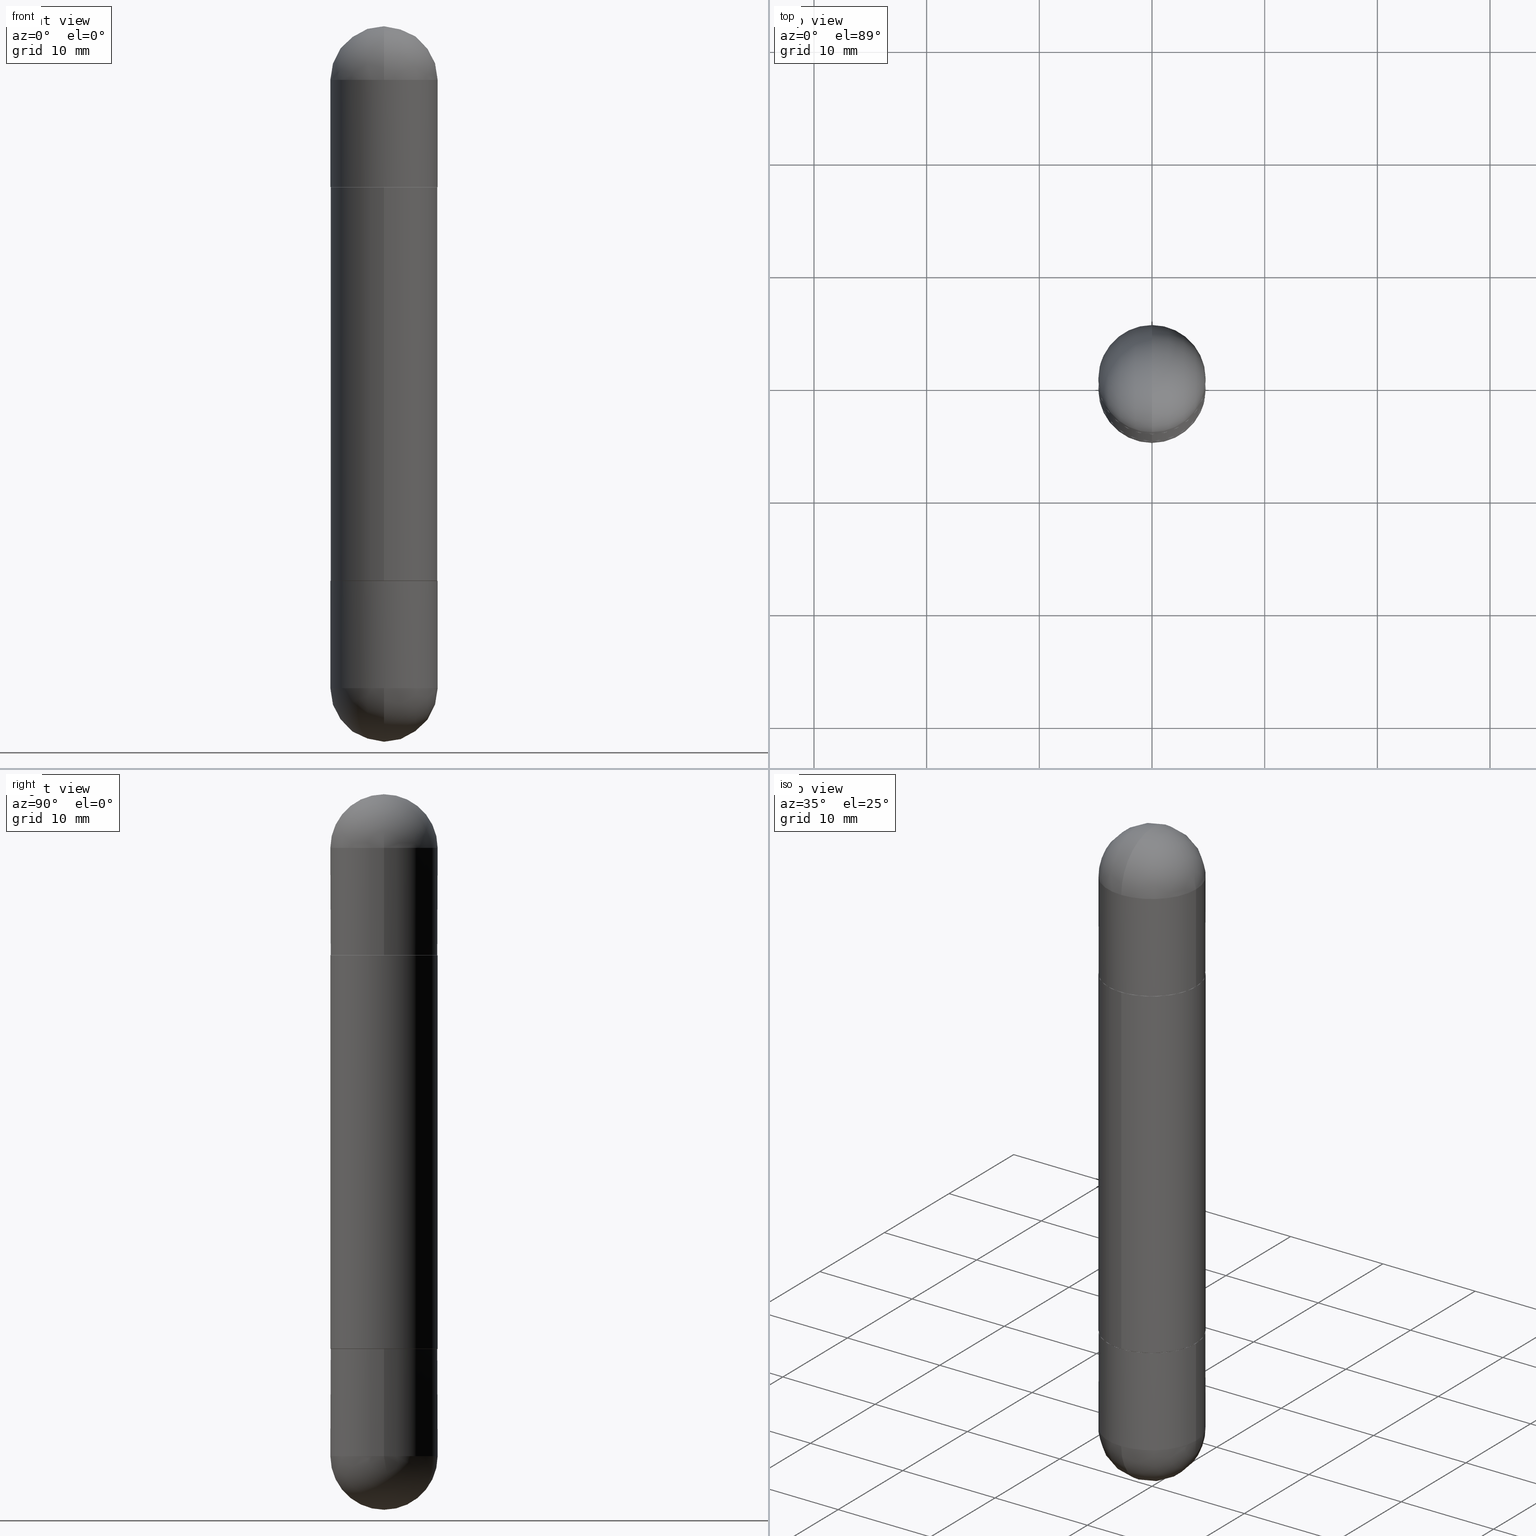
[diagram: canonical four-view strip — front | top / right | iso, engineering-drawing reading convention]
A machine part, canonical four-view strip (front | top / right | iso — engineering-drawing reading convention). The complete STEP part file that produces these views, byte-faithful:
ISO-10303-21;
HEADER;
FILE_DESCRIPTION (( 'STEP AP203' ),
    '1' );
FILE_NAME ('31354.STEP',
    '2024-03-01T12:41:32',
    ( '' ),
    ( '' ),
    'SwSTEP 2.0',
    'SolidWorks 2023',
    '' );
FILE_SCHEMA (( 'CONFIG_CONTROL_DESIGN' ));
ENDSEC;

DATA;
#1 = DIRECTION ( 'NONE',  ( 2.445468806185136597E-29, -3.491481338843145583E-15, 1.000000000000000000 ) ) ;
#2 = DIRECTION ( 'NONE',  ( -2.445919005488626364E-29, 3.490836627816795453E-15, 1.000000000000000000 ) ) ;
#3 = CARTESIAN_POINT ( 'NONE',  ( -0.1875000000000000278, -6.133927340794232602E-15, -0.5620000000000007212 ) ) ;
#4 = PLANE ( 'NONE',  #698 ) ;
#5 = DIRECTION ( 'NONE',  ( 1.000000000000000000, -6.982962677686266711E-15, -4.883557194083113462E-29 ) ) ;
#6 = AXIS2_PLACEMENT_3D ( 'NONE', #30, #791, #780 ) ;
#7 = DIRECTION ( 'NONE',  ( 4.851104656541377638E-15, 0.7071067811866103003, -0.7071067811864847341 ) ) ;
#8 = CARTESIAN_POINT ( 'NONE',  ( 4.737745113631468267E-29, -6.761750548081131125E-15, -0.5630000000000008331 ) ) ;
#9 = DIRECTION ( 'NONE',  ( 2.445468806185136597E-29, -3.491481338843145583E-15, 1.000000000000000000 ) ) ;
#10 = CARTESIAN_POINT ( 'NONE',  ( 0.000000000000000000, 0.000000000000000000, -2.500000000000000444 ) ) ;
#11 = FACE_OUTER_BOUND ( 'NONE', #180, .T. ) ;
#12 = CARTESIAN_POINT ( 'NONE',  ( 0.1875000000000000555, -8.729576217442571356E-15, -2.312500000000000000 ) ) ;
#13 = LENGTH_MEASURE_WITH_UNIT ( LENGTH_MEASURE( 0.02539999999999999897 ), #469 );
#14 = DIRECTION ( 'NONE',  ( -1.000000000000000000, 0.000000000000000000, 0.000000000000000000 ) ) ;
#15 = CARTESIAN_POINT ( 'NONE',  ( 4.740191032636957666E-29, -6.765241384708948197E-15, -0.5620000000000007212 ) ) ;
#16 = EDGE_CURVE ( 'NONE', #294, #729, #804, .T. ) ;
#17 = AXIS2_PLACEMENT_3D ( 'NONE', #478, #114, #751 ) ;
#18 = DATE_AND_TIME ( #585, #481 ) ;
#19 = EDGE_CURVE ( 'NONE', #729, #564, #23, .T. ) ;
#20 = ORIENTED_EDGE ( 'NONE', *, *, #202, .T. ) ;
#21 = EDGE_LOOP ( 'NONE', ( #152, #735, #812, #608 ) ) ;
#22 = AXIS2_PLACEMENT_3D ( 'NONE', #433, #352, #689 ) ;
#23 = CIRCLE ( 'NONE', #22, 0.1875000000000000555 ) ;
#24 = DIRECTION ( 'NONE',  ( -2.445919005488626364E-29, 3.490836627816795453E-15, 1.000000000000000000 ) ) ;
#25 = CARTESIAN_POINT ( 'NONE',  ( 5.655146614303128380E-29, -8.074050596074775072E-15, -0.1875000000000006661 ) ) ;
#26 = ORIENTED_EDGE ( 'NONE', *, *, #815, .F. ) ;
#27 = CARTESIAN_POINT ( 'NONE',  ( 0.000000000000000000, 0.000000000000000000, -2.500000000000000444 ) ) ;
#28 = EDGE_LOOP ( 'NONE', ( #490, #45, #26, #287 ) ) ;
#29 = ADVANCED_FACE ( 'NONE', ( #123 ), #621, .T. ) ;
#30 = CARTESIAN_POINT ( 'NONE',  ( 0.000000000000000000, 0.000000000000000000, 0.000000000000000000 ) ) ;
#31 = AXIS2_PLACEMENT_3D ( 'NONE', #703, #503, #761 ) ;
#32 = DIRECTION ( 'NONE',  ( -6.982962677686265922E-15, -1.000000000000000000, -3.661994629576761260E-15 ) ) ;
#33 = VERTEX_POINT ( 'NONE', #817 ) ;
#34 = CIRCLE ( 'NONE', #499, 0.1875000000000000555 ) ;
#35 = DIRECTION ( 'NONE',  ( -6.982962677686265922E-15, -1.000000000000000000, 2.929595703661408850E-15 ) ) ;
#36 = ORIENTED_EDGE ( 'NONE', *, *, #334, .F. ) ;
#37 = DIRECTION ( 'NONE',  ( 0.000000000000000000, 0.000000000000000000, 1.000000000000000000 ) ) ;
#38 = ORIENTED_EDGE ( 'NONE', *, *, #613, .F. ) ;
#39 = DIRECTION ( 'NONE',  ( 1.000000000000000000, -6.982962677686270655E-15, 0.000000000000000000 ) ) ;
#40 = ADVANCED_FACE ( 'NONE', ( #697 ), #630, .T. ) ;
#41 = AXIS2_PLACEMENT_3D ( 'NONE', #517, #196, #493 ) ;
#42 = ADVANCED_FACE ( 'NONE', ( #11 ), #60, .T. ) ;
#43 = ORIENTED_EDGE ( 'NONE', *, *, #169, .T. ) ;
#44 = CIRCLE ( 'NONE', #738, 0.1875000000000003331 ) ;
#45 = ORIENTED_EDGE ( 'NONE', *, *, #228, .T. ) ;
#46 = FACE_OUTER_BOUND ( 'NONE', #790, .T. ) ;
#47 = AXIS2_PLACEMENT_3D ( 'NONE', #25, #406, #341 ) ;
#48 = ORIENTED_EDGE ( 'NONE', *, *, #144, .F. ) ;
#49 = CARTESIAN_POINT ( 'NONE',  ( -1.309305502066128860E-15, -0.1875000000000069389, -0.5630000000000014992 ) ) ;
#50 = LINE ( 'NONE', #302, #721 ) ;
#51 = ORIENTED_EDGE ( 'NONE', *, *, #229, .F. ) ;
#52 = VERTEX_POINT ( 'NONE', #633 ) ;
#53 = EDGE_CURVE ( 'NONE', #409, #529, #486, .T. ) ;
#54 = EDGE_CURVE ( 'NONE', #798, #704, #373, .T. ) ;
#55 = CARTESIAN_POINT ( 'NONE',  ( 5.324026836389243254E-29, -8.548232964214825368E-15, -0.1875000000000006661 ) ) ;
#56 = CARTESIAN_POINT ( 'NONE',  ( 4.740191032636957666E-29, -6.765241384708948197E-15, -1.937999999999999945 ) ) ;
#57 = VECTOR ( 'NONE', #769, 39.37007874015748143 ) ;
#58 = DIRECTION ( 'NONE',  ( -2.445919005488626364E-29, 3.490836627816795453E-15, -1.000000000000000000 ) ) ;
#59 = CARTESIAN_POINT ( 'NONE',  ( -1.302322539388441071E-15, -0.1865000000000067437, -0.5620000000000013873 ) ) ;
#60 = CONICAL_SURFACE ( 'NONE', #387, 0.1864999999999999714, 0.7853981633975336552 ) ;
#61 = CARTESIAN_POINT ( 'NONE',  ( 5.790569421510013204E-29, -9.191404651505909607E-15, -3.414809992080329023E-16 ) ) ;
#62 = DIRECTION ( 'NONE',  ( -6.982962677686266711E-15, -1.000000000000000000, -2.913971193241879189E-15 ) ) ;
#63 = FACE_OUTER_BOUND ( 'NONE', #238, .T. ) ;
#64 = CARTESIAN_POINT ( 'NONE',  ( 1.309305502066231017E-15, 0.1874999999999918954, -2.312500000000000444 ) ) ;
#65 = DIRECTION ( 'NONE',  ( 1.000000000000000000, -6.982962677686266711E-15, 0.000000000000000000 ) ) ;
#66 = VECTOR ( 'NONE', #7, 39.37007874015748143 ) ;
#67 = CC_DESIGN_APPROVAL ( #249, ( #111 ) ) ;
#68 = CARTESIAN_POINT ( 'NONE',  ( 4.740191032636957666E-29, -6.765241384708948197E-15, -0.5620000000000007212 ) ) ;
#69 = CARTESIAN_POINT ( 'NONE',  ( 4.739318546386794397E-29, -6.766490834678016045E-15, -0.5620000000000007212 ) ) ;
#70 = CARTESIAN_POINT ( 'NONE',  ( 0.000000000000000000, 0.000000000000000000, -2.500000000000000444 ) ) ;
#71 = CLOSED_SHELL ( 'NONE', ( #755, #693, #407, #132, #628, #495 ) ) ;
#72 = AXIS2_PLACEMENT_3D ( 'NONE', #740, #240, #235 ) ;
#73 = PERSON_AND_ORGANIZATION_ROLE ( 'creator' ) ;
#74 = ADVANCED_FACE ( 'NONE', ( #256 ), #382, .F. ) ;
#75 = SPHERICAL_SURFACE ( 'NONE', #659, 0.1875000000000003331 ) ;
#76 = DIRECTION ( 'NONE',  ( -2.445468806185136597E-29, 3.491481338843145583E-15, 1.000000000000000000 ) ) ;
#77 = CC_DESIGN_PERSON_AND_ORGANIZATION_ASSIGNMENT ( #264, #224, ( #410 ) ) ;
#78 = EDGE_CURVE ( 'NONE', #618, #211, #34, .T. ) ;
#79 = APPROVAL_ROLE ( '' ) ;
#80 = PLANE ( 'NONE',  #116 ) ;
#81 = ORIENTED_EDGE ( 'NONE', *, *, #719, .F. ) ;
#82 = MANIFOLD_SOLID_BREP ( 'Mirror4[3]', #375 ) ;
#83 = CIRCLE ( 'NONE', #737, 0.1875000000000000555 ) ;
#84 = LOCAL_TIME ( 7, 41, 32.00000000000000000, #544 ) ;
#85 = SECURITY_CLASSIFICATION_LEVEL ( 'unclassified' ) ;
#86 = CARTESIAN_POINT ( 'NONE',  ( 5.324026836389243254E-29, -8.548232964214825368E-15, -0.1875000000000006661 ) ) ;
#87 = ORIENTED_EDGE ( 'NONE', *, *, #251, .T. ) ;
#88 = AXIS2_PLACEMENT_3D ( 'NONE', #710, #516, #701 ) ;
#89 = CIRCLE ( 'NONE', #754, 0.1875000000000002220 ) ;
#90 = DIRECTION ( 'NONE',  ( 2.445919005488626364E-29, -3.490836627816795453E-15, 1.000000000000000000 ) ) ;
#91 = EDGE_LOOP ( 'NONE', ( #809, #598, #99, #539, #339 ) ) ;
#92 = ORIENTED_EDGE ( 'NONE', *, *, #143, .T. ) ;
#93 = CARTESIAN_POINT ( 'NONE',  ( 1.325162202192633778E-15, 0.1864999999999932268, -1.938000000000000389 ) ) ;
#94 = ORIENTED_EDGE ( 'NONE', *, *, #119, .F. ) ;
#95 = MANIFOLD_SOLID_BREP ( 'Body-Move/Copy2[1]', #403 ) ;
#96 = CIRCLE ( 'NONE', #763, 0.1875000000000000555 ) ;
#97 = CARTESIAN_POINT ( 'NONE',  ( 4.740191032636957666E-29, -6.765241384708948197E-15, -0.5620000000000007212 ) ) ;
#98 = EDGE_LOOP ( 'NONE', ( #48, #588 ) ) ;
#99 = ORIENTED_EDGE ( 'NONE', *, *, #570, .T. ) ;
#100 = CIRCLE ( 'NONE', #527, 0.1875000000000000555 ) ;
#101 = DIRECTION ( 'NONE',  ( -1.000000000000000000, 0.000000000000000000, 0.000000000000000000 ) ) ;
#102 = EDGE_CURVE ( 'NONE', #398, #226, #146, .T. ) ;
#103 = EDGE_LOOP ( 'NONE', ( #612, #660, #472, #399 ) ) ;
#104 = PRODUCT_RELATED_PRODUCT_CATEGORY ( 'detail', '', ( #410 ) ) ;
#105 = EDGE_CURVE ( 'NONE', #233, #528, #818, .T. ) ;
#106 = CARTESIAN_POINT ( 'NONE',  ( 0.000000000000000000, 0.000000000000000000, -2.500000000000000444 ) ) ;
#107 = ORIENTED_EDGE ( 'NONE', *, *, #627, .F. ) ;
#108 = ORIENTED_EDGE ( 'NONE', *, *, #143, .F. ) ;
#109 = LINE ( 'NONE', #803, #541 ) ;
#110 = AXIS2_PLACEMENT_3D ( 'NONE', #10, #58, #765 ) ;
#111 = SECURITY_CLASSIFICATION ( '', '', #85 ) ;
#112 = ORIENTED_EDGE ( 'NONE', *, *, #793, .F. ) ;
#113 = CARTESIAN_POINT ( 'NONE',  ( 3.057398756860784006E-29, -4.363545784770995696E-15, -1.250000000000000222 ) ) ;
#114 = DIRECTION ( 'NONE',  ( -2.445919005488626364E-29, 3.490836627816795453E-15, 1.000000000000000000 ) ) ;
#115 = EDGE_LOOP ( 'NONE', ( #467, #214, #92, #392 ) ) ;
#116 = AXIS2_PLACEMENT_3D ( 'NONE', #722, #330, #526 ) ;
#117 = DIRECTION ( 'NONE',  ( 1.000000000000000000, -6.982962677686270655E-15, 0.000000000000000000 ) ) ;
#118 = ADVANCED_FACE ( 'NONE', ( #386 ), #253, .T. ) ;
#119 = EDGE_CURVE ( 'NONE', #564, #278, #100, .T. ) ;
#120 = DIRECTION ( 'NONE',  ( -2.445919005488626364E-29, 3.490836627816795453E-15, -1.000000000000000000 ) ) ;
#121 = PLANE ( 'NONE',  #331 ) ;
#122 = VERTEX_POINT ( 'NONE', #379 ) ;
#123 = FACE_OUTER_BOUND ( 'NONE', #483, .T. ) ;
#124 = CARTESIAN_POINT ( 'NONE',  ( 1.309305502066222340E-15, 0.1874999999999932554, -1.938000000000000389 ) ) ;
#125 = ORIENTED_EDGE ( 'NONE', *, *, #19, .T. ) ;
#126 = DIRECTION ( 'NONE',  ( -2.445919005488626364E-29, 3.490836627816795453E-15, -1.000000000000000000 ) ) ;
#127 = CIRCLE ( 'NONE', #220, 0.1875000000000000555 ) ;
#128 = DIRECTION ( 'NONE',  ( 1.000000000000000000, -6.982962677686266711E-15, 0.000000000000000000 ) ) ;
#129 = DIRECTION ( 'NONE',  ( -1.000000000000000000, 6.982962677686265922E-15, 4.876176775795935793E-29 ) ) ;
#130 = CIRCLE ( 'NONE', #554, 0.1875000000000002220 ) ;
#131 = CIRCLE ( 'NONE', #592, 0.1864999999999999714 ) ;
#132 = ADVANCED_FACE ( 'NONE', ( #504 ), #4, .F. ) ;
#133 = FACE_OUTER_BOUND ( 'NONE', #243, .T. ) ;
#134 = DIRECTION ( 'NONE',  ( -2.445919005488625803E-29, 3.490836627816795453E-15, -1.000000000000000000 ) ) ;
#135 = DIRECTION ( 'NONE',  ( -6.982962677686265922E-15, -1.000000000000000000, -3.642463991552347014E-15 ) ) ;
#136 = CARTESIAN_POINT ( 'NONE',  ( 1.309305502066231017E-15, 0.1874999999999918954, -0.1875000000000000278 ) ) ;
#137 = DIRECTION ( 'NONE',  ( 1.000000000000000000, -6.982962677686265922E-15, 0.000000000000000000 ) ) ;
#138 = CYLINDRICAL_SURFACE ( 'NONE', #41, 0.1875000000000000555 ) ;
#139 = ADVANCED_FACE ( 'NONE', ( #758 ), #452, .T. ) ;
#140 = APPROVAL_STATUS ( 'not_yet_approved' ) ;
#141 = FACE_OUTER_BOUND ( 'NONE', #115, .T. ) ;
#142 = DIRECTION ( 'NONE',  ( -6.982962677686265922E-15, -1.000000000000000000, 2.929595703661408850E-15 ) ) ;
#143 = EDGE_CURVE ( 'NONE', #784, #745, #130, .T. ) ;
#144 = EDGE_CURVE ( 'NONE', #226, #398, #296, .T. ) ;
#145 = CYLINDRICAL_SURFACE ( 'NONE', #400, 0.1875000000000000555 ) ;
#146 = CIRCLE ( 'NONE', #601, 0.1864999999999999714 ) ;
#147 = DIRECTION ( 'NONE',  ( 1.000000000000000000, -6.982962677686266711E-15, -4.883557194083113462E-29 ) ) ;
#148 = ADVANCED_BREP_SHAPE_REPRESENTATION ( '31354', ( #95, #360, #82, #635, #646, #6 ), #623 ) ;
#149 = ORIENTED_EDGE ( 'NONE', *, *, #53, .F. ) ;
#150 = APPROVAL_DATE_TIME ( #18, #814 ) ;
#151 = ORIENTED_EDGE ( 'NONE', *, *, #639, .F. ) ;
#152 = ORIENTED_EDGE ( 'NONE', *, *, #259, .F. ) ;
#153 = AXIS2_PLACEMENT_3D ( 'NONE', #685, #771, #267 ) ;
#154 = CARTESIAN_POINT ( 'NONE',  ( 5.324026836389243254E-29, -8.548232964214825368E-15, -0.1875000000000006661 ) ) ;
#155 = DIRECTION ( 'NONE',  ( -1.000000000000000000, 7.105427357601001070E-15, -4.926315508542082329E-29 ) ) ;
#156 = ORIENTED_EDGE ( 'NONE', *, *, #345, .T. ) ;
#157 = EDGE_LOOP ( 'NONE', ( #557, #343 ) ) ;
#158 = CIRCLE ( 'NONE', #555, 0.1875000000000000278 ) ;
#159 = CARTESIAN_POINT ( 'NONE',  ( -1.302322539388441071E-15, -0.1865000000000067437, -0.5620000000000013873 ) ) ;
#160 = LINE ( 'NONE', #533, #797 ) ;
#161 = VERTEX_POINT ( 'NONE', #307 ) ;
#162 = DIRECTION ( 'NONE',  ( 1.000000000000000000, -6.982962677686266711E-15, 0.000000000000000000 ) ) ;
#163 = ORIENTED_EDGE ( 'NONE', *, *, #582, .F. ) ;
#164 = VECTOR ( 'NONE', #444, 39.37007874015748143 ) ;
#165 = AXIS2_PLACEMENT_3D ( 'NONE', #450, #326, #204 ) ;
#166 = DIRECTION ( 'NONE',  ( 2.445919005488626364E-29, -3.490836627816795453E-15, 1.000000000000000000 ) ) ;
#167 = ORIENTED_EDGE ( 'NONE', *, *, #366, .F. ) ;
#168 = CC_DESIGN_DATE_AND_TIME_ASSIGNMENT ( #477, #347, ( #111 ) ) ;
#169 = EDGE_CURVE ( 'NONE', #528, #233, #158, .T. ) ;
#170 = PERSON_AND_ORGANIZATION_ROLE ( 'classification_officer' ) ;
#171 = CARTESIAN_POINT ( 'NONE',  ( 5.324026836389243254E-29, -8.548232964214825368E-15, -0.1875000000000006661 ) ) ;
#172 = VERTEX_POINT ( 'NONE', #208 ) ;
#173 = PERSON_AND_ORGANIZATION ( #439, #574 ) ;
#174 = CARTESIAN_POINT ( 'NONE',  ( 0.1875000000000000555, -8.729576217442571356E-15, -0.1875000000000006661 ) ) ;
#175 = ORIENTED_EDGE ( 'NONE', *, *, #259, .T. ) ;
#176 = CARTESIAN_POINT ( 'NONE',  ( 5.324026836389243254E-29, -8.548232964214825368E-15, -0.1875000000000006661 ) ) ;
#177 = ADVANCED_FACE ( 'NONE', ( #787 ), #522, .T. ) ;
#178 = CARTESIAN_POINT ( 'NONE',  ( 1.328714915871435071E-15, 0.1864999999999932268, -1.938000000000000389 ) ) ;
#179 = AXIS2_PLACEMENT_3D ( 'NONE', #624, #317, #374 ) ;
#180 = EDGE_LOOP ( 'NONE', ( #654, #342, #540, #688 ) ) ;
#181 = CARTESIAN_POINT ( 'NONE',  ( -1.286343374582108525E-15, -0.1875000000000084932, -0.1875000000000013045 ) ) ;
#182 = CARTESIAN_POINT ( 'NONE',  ( 0.000000000000000000, 0.000000000000000000, -2.500000000000000444 ) ) ;
#183 = CIRCLE ( 'NONE', #699, 0.1875000000000003331 ) ;
#184 = ORIENTED_EDGE ( 'NONE', *, *, #251, .F. ) ;
#185 = DIRECTION ( 'NONE',  ( -2.445919005488626364E-29, 3.490836627816795453E-15, -1.000000000000000000 ) ) ;
#186 = EDGE_LOOP ( 'NONE', ( #299, #593 ) ) ;
#187 = DIRECTION ( 'NONE',  ( 2.445468806185136597E-29, -3.491481338843145583E-15, 1.000000000000000000 ) ) ;
#188 = PLANE ( 'NONE',  #440 ) ;
#189 = DIRECTION ( 'NONE',  ( -4.937700262164969294E-15, -0.7071067811866054154, -0.7071067811864896191 ) ) ;
#190 = CONICAL_SURFACE ( 'NONE', #216, 0.1864999999999999714, 0.7853981633975336552 ) ;
#191 = LOCAL_TIME ( 7, 41, 32.00000000000000000, #776 ) ;
#192 = ADVANCED_FACE ( 'NONE', ( #713 ), #80, .F. ) ;
#193 = DIRECTION ( 'NONE',  ( 2.438088387897960049E-29, -3.491481338843145188E-15, -1.000000000000000000 ) ) ;
#194 = CARTESIAN_POINT ( 'NONE',  ( 0.000000000000000000, 0.000000000000000000, -2.500000000000000444 ) ) ;
#195 = AXIS2_PLACEMENT_3D ( 'NONE', #86, #147, #465 ) ;
#196 = DIRECTION ( 'NONE',  ( -2.445468806185136597E-29, 3.491481338843145583E-15, -1.000000000000000000 ) ) ;
#197 = DIRECTION ( 'NONE',  ( -6.982962677686265922E-15, -1.000000000000000000, -3.490836627816795453E-15 ) ) ;
#198 = DIRECTION ( 'NONE',  ( -2.445919005488626364E-29, 3.490836627816795453E-15, -1.000000000000000000 ) ) ;
#199 = CARTESIAN_POINT ( 'NONE',  ( 1.286343374582193722E-15, 0.1874999999999934497, -1.937000000000000499 ) ) ;
#200 = CARTESIAN_POINT ( 'NONE',  ( 4.740191032636957666E-29, -6.765241384708948197E-15, -0.5620000000000007212 ) ) ;
#201 = CC_DESIGN_PERSON_AND_ORGANIZATION_ASSIGNMENT ( #384, #73, ( #732 ) ) ;
#202 = EDGE_CURVE ( 'NONE', #595, #807, #183, .T. ) ;
#203 = DIRECTION ( 'NONE',  ( -2.445919005488626364E-29, 3.490836627816795453E-15, 1.000000000000000000 ) ) ;
#204 = DIRECTION ( 'NONE',  ( 6.982962677686266711E-15, 1.000000000000000000, -2.913971193241875639E-15 ) ) ;
#205 = AXIS2_PLACEMENT_3D ( 'NONE', #55, #381, #637 ) ;
#206 = APPLICATION_CONTEXT ( 'configuration controlled 3d designs of mechanical parts and assemblies' ) ;
#207 = PERSON_AND_ORGANIZATION ( #439, #574 ) ;
#208 = CARTESIAN_POINT ( 'NONE',  ( -0.1875000000000000278, -6.088003085826206921E-15, -1.937999999999999945 ) ) ;
#209 = ORIENTED_EDGE ( 'NONE', *, *, #53, .T. ) ;
#210 = CARTESIAN_POINT ( 'NONE',  ( 1.286343374582162760E-15, 0.1875000000000001110, -2.500000000000000000 ) ) ;
#211 = VERTEX_POINT ( 'NONE', #587 ) ;
#212 = DATE_AND_TIME ( #464, #723 ) ;
#213 = DIRECTION ( 'NONE',  ( -2.445468806185136877E-29, 3.491481338843145188E-15, -1.000000000000000000 ) ) ;
#214 = ORIENTED_EDGE ( 'NONE', *, *, #285, .T. ) ;
#215 = VERTEX_POINT ( 'NONE', #644 ) ;
#216 = AXIS2_PLACEMENT_3D ( 'NONE', #68, #322, #451 ) ;
#217 = CC_DESIGN_APPROVAL ( #393, ( #732 ) ) ;
#218 = DIRECTION ( 'NONE',  ( -6.982962677686265922E-15, -1.000000000000000000, 2.913971193241877216E-15 ) ) ;
#219 = UNCERTAINTY_MEASURE_WITH_UNIT (LENGTH_MEASURE( 1.000000000000000082E-05 ), #269, 'distance_accuracy_value', 'NONE');
#220 = AXIS2_PLACEMENT_3D ( 'NONE', #545, #556, #811 ) ;
#221 = DIRECTION ( 'NONE',  ( 1.000000000000000000, -6.982962677686265922E-15, 0.000000000000000000 ) ) ;
#222 = ORIENTED_EDGE ( 'NONE', *, *, #78, .T. ) ;
#223 = AXIS2_PLACEMENT_3D ( 'NONE', #27, #789, #221 ) ;
#224 = PERSON_AND_ORGANIZATION_ROLE ( 'design_owner' ) ;
#225 = DIRECTION ( 'NONE',  ( -2.445468806185136597E-29, 3.491481338843145583E-15, 1.000000000000000000 ) ) ;
#226 = VERTEX_POINT ( 'NONE', #391 ) ;
#227 = PLANE ( 'NONE',  #625 ) ;
#228 = EDGE_CURVE ( 'NONE', #398, #667, #327, .T. ) ;
#229 = EDGE_CURVE ( 'NONE', #122, #529, #781, .T. ) ;
#230 = ORIENTED_EDGE ( 'NONE', *, *, #368, .T. ) ;
#231 = VECTOR ( 'NONE', #665, 39.37007874015748143 ) ;
#232 = CARTESIAN_POINT ( 'NONE',  ( 0.1875000000000000555, -1.309305502066175205E-15, -2.500000000000000444 ) ) ;
#233 = VERTEX_POINT ( 'NONE', #648 ) ;
#234 = ORIENTED_EDGE ( 'NONE', *, *, #768, .F. ) ;
#235 = DIRECTION ( 'NONE',  ( 1.000000000000000000, -6.982962677686270655E-15, 0.000000000000000000 ) ) ;
#236 = ORIENTED_EDGE ( 'NONE', *, *, #334, .T. ) ;
#237 = DIRECTION ( 'NONE',  ( 1.000000000000000000, -6.982962677686265922E-15, 0.000000000000000000 ) ) ;
#238 = EDGE_LOOP ( 'NONE', ( #412, #242, #184, #300 ) ) ;
#239 = FACE_OUTER_BOUND ( 'NONE', #91, .T. ) ;
#240 = DIRECTION ( 'NONE',  ( 2.445468806185136597E-29, -3.491481338843145583E-15, 1.000000000000000000 ) ) ;
#241 = AXIS2_PLACEMENT_3D ( 'NONE', #772, #709, #385 ) ;
#242 = ORIENTED_EDGE ( 'NONE', *, *, #250, .T. ) ;
#243 = EDGE_LOOP ( 'NONE', ( #408, #230 ) ) ;
#244 = CARTESIAN_POINT ( 'NONE',  ( 5.790569421510013204E-29, -9.191404651505909607E-15, -3.414809992080329023E-16 ) ) ;
#245 = EDGE_LOOP ( 'NONE', ( #156, #359 ) ) ;
#246 = DIRECTION ( 'NONE',  ( 2.445468806185136597E-29, -3.491481338843145583E-15, 1.000000000000000000 ) ) ;
#247 = CARTESIAN_POINT ( 'NONE',  ( 1.279482876584437493E-15, 0.1864999999999932268, -0.5620000000000000551 ) ) ;
#248 = DIRECTION ( 'NONE',  ( 1.000000000000000000, -6.982962677686270655E-15, 0.000000000000000000 ) ) ;
#249 = APPROVAL ( #730, 'UNSPECIFIED' ) ;
#250 = EDGE_CURVE ( 'NONE', #215, #428, #277, .T. ) ;
#251 = EDGE_CURVE ( 'NONE', #460, #428, #337, .T. ) ;
#252 = DIRECTION ( 'NONE',  ( 2.445919005488626364E-29, -3.490836627816795453E-15, 1.000000000000000000 ) ) ;
#253 = CYLINDRICAL_SURFACE ( 'NONE', #312, 0.1875000000000000555 ) ;
#254 = DIRECTION ( 'NONE',  ( 2.445468806185136597E-29, -3.491481338843145583E-15, 1.000000000000000000 ) ) ;
#255 = LINE ( 'NONE', #247, #66 ) ;
#256 = FACE_OUTER_BOUND ( 'NONE', #649, .T. ) ;
#257 = AXIS2_PLACEMENT_3D ( 'NONE', #777, #90, #32 ) ;
#258 = FACE_OUTER_BOUND ( 'NONE', #484, .T. ) ;
#259 = EDGE_CURVE ( 'NONE', #739, #294, #578, .T. ) ;
#260 = ADVANCED_FACE ( 'NONE', ( #402 ), #75, .T. ) ;
#261 = CARTESIAN_POINT ( 'NONE',  ( -0.1875000000000000278, -6.133927340794232602E-15, -0.5620000000000007212 ) ) ;
#262 = DIRECTION ( 'NONE',  ( 1.000000000000000000, -6.982962677686266711E-15, 0.000000000000000000 ) ) ;
#263 = CARTESIAN_POINT ( 'NONE',  ( 1.286343374582210880E-15, 0.1874999999999935052, -0.5630000000000001670 ) ) ;
#264 = PERSON_AND_ORGANIZATION ( #439, #574 ) ;
#265 = CARTESIAN_POINT ( 'NONE',  ( 5.324026836389243254E-29, -8.548232964214825368E-15, -2.312500000000000000 ) ) ;
#266 = AXIS2_PLACEMENT_3D ( 'NONE', #97, #808, #736 ) ;
#267 = DIRECTION ( 'NONE',  ( 1.000000000000000000, -6.982962677686266711E-15, 0.000000000000000000 ) ) ;
#268 = CC_DESIGN_APPROVAL ( #814, ( #468 ) ) ;
#269 =( CONVERSION_BASED_UNIT ( 'INCH', #13 ) LENGTH_UNIT ( ) NAMED_UNIT ( #418 ) );
#270 = DIRECTION ( 'NONE',  ( 5.024295867788490741E-15, 0.7071067811866103003, 0.7071067811864847341 ) ) ;
#271 = EDGE_LOOP ( 'NONE', ( #805, #683, #536, #548, #724 ) ) ;
#272 = AXIS2_PLACEMENT_3D ( 'NONE', #492, #748, #117 ) ;
#273 = DIRECTION ( 'NONE',  ( -7.105427357600999492E-15, -1.000000000000000000, 0.000000000000000000 ) ) ;
#274 = CC_DESIGN_PERSON_AND_ORGANIZATION_ASSIGNMENT ( #715, #395, ( #468 ) ) ;
#275 = ORIENTED_EDGE ( 'NONE', *, *, #487, .F. ) ;
#276 = EDGE_LOOP ( 'NONE', ( #87, #655 ) ) ;
#277 = LINE ( 'NONE', #210, #727 ) ;
#278 = VERTEX_POINT ( 'NONE', #396 ) ;
#279 = VECTOR ( 'NONE', #185, 39.37007874015748143 ) ;
#280 = CARTESIAN_POINT ( 'NONE',  ( 5.324026836389243254E-29, -8.548232964214825368E-15, -0.1875000000000006661 ) ) ;
#281 = ORIENTED_EDGE ( 'NONE', *, *, #119, .T. ) ;
#282 = VERTEX_POINT ( 'NONE', #652 ) ;
#283 = AXIS2_PLACEMENT_3D ( 'NONE', #599, #358, #677 ) ;
#284 = EDGE_CURVE ( 'NONE', #437, #798, #297, .T. ) ;
#285 = EDGE_CURVE ( 'NONE', #161, #784, #160, .T. ) ;
#286 = DIRECTION ( 'NONE',  ( -2.445919005488626364E-29, 3.490836627816795453E-15, 1.000000000000000000 ) ) ;
#287 = ORIENTED_EDGE ( 'NONE', *, *, #485, .F. ) ;
#288 = ORIENTED_EDGE ( 'NONE', *, *, #344, .F. ) ;
#289 = FACE_OUTER_BOUND ( 'NONE', #788, .T. ) ;
#290 = EDGE_LOOP ( 'NONE', ( #476, #717, #463, #679 ) ) ;
#291 = CALENDAR_DATE ( 2024, 1, 3 ) ;
#292 = APPROVAL_PERSON_ORGANIZATION ( #173, #249, #419 ) ;
#293 = CARTESIAN_POINT ( 'NONE',  ( 1.282913125583324384E-15, 0.1864999999999932268, -0.5620000000000000551 ) ) ;
#294 = VERTEX_POINT ( 'NONE', #335 ) ;
#295 = APPROVAL_DATE_TIME ( #415, #249 ) ;
#296 = CIRCLE ( 'NONE', #512, 0.1864999999999999714 ) ;
#297 = CIRCLE ( 'NONE', #257, 0.1864999999999999714 ) ;
#298 = DIRECTION ( 'NONE',  ( -2.445468806185136597E-29, 3.491481338843145583E-15, -1.000000000000000000 ) ) ;
#299 = ORIENTED_EDGE ( 'NONE', *, *, #105, .F. ) ;
#300 = ORIENTED_EDGE ( 'NONE', *, *, #519, .F. ) ;
#301 = DIRECTION ( 'NONE',  ( -6.982962677686265922E-15, -1.000000000000000000, 2.913971193241877216E-15 ) ) ;
#302 = CARTESIAN_POINT ( 'NONE',  ( -1.302322539388441071E-15, -0.1865000000000067437, -1.937999999999999279 ) ) ;
#303 = ORIENTED_EDGE ( 'NONE', *, *, #320, .T. ) ;
#304 = ORIENTED_EDGE ( 'NONE', *, *, #768, .T. ) ;
#305 = FACE_OUTER_BOUND ( 'NONE', #417, .T. ) ;
#306 = AXIS2_PLACEMENT_3D ( 'NONE', #631, #9, #571 ) ;
#307 = CARTESIAN_POINT ( 'NONE',  ( 1.282913125583324384E-15, 0.1864999999999932268, -0.5620000000000000551 ) ) ;
#308 = EDGE_CURVE ( 'NONE', #691, #33, #405, .T. ) ;
#309 = ADVANCED_FACE ( 'NONE', ( #531 ), #594, .T. ) ;
#310 = ADVANCED_FACE ( 'NONE', ( #471 ), #596, .T. ) ;
#311 = DIRECTION ( 'NONE',  ( 1.000000000000000000, -6.982962677686270655E-15, 0.000000000000000000 ) ) ;
#312 = AXIS2_PLACEMENT_3D ( 'NONE', #438, #315, #137 ) ;
#313 = CARTESIAN_POINT ( 'NONE',  ( 4.739318546386794397E-29, -6.766490834678016045E-15, -0.5620000000000007212 ) ) ;
#314 = CARTESIAN_POINT ( 'NONE',  ( -1.302322539388441071E-15, -0.1865000000000067437, -0.5620000000000013873 ) ) ;
#315 = DIRECTION ( 'NONE',  ( -2.445468806185136597E-29, 3.491481338843145583E-15, -1.000000000000000000 ) ) ;
#316 = DIRECTION ( 'NONE',  ( -6.982962677686265922E-15, -1.000000000000000000, -3.661994629576761260E-15 ) ) ;
#317 = DIRECTION ( 'NONE',  ( 2.445468806185136597E-29, -3.491481338843145583E-15, 1.000000000000000000 ) ) ;
#318 = AXIS2_PLACEMENT_3D ( 'NONE', #113, #361, #380 ) ;
#319 = LOCAL_TIME ( 7, 41, 32.00000000000000000, #676 ) ;
#320 = EDGE_CURVE ( 'NONE', #33, #409, #731, .T. ) ;
#321 = CARTESIAN_POINT ( 'NONE',  ( -1.309305502066128860E-15, -0.1875000000000069389, -0.5630000000000014992 ) ) ;
#322 = DIRECTION ( 'NONE',  ( -2.445919005488626364E-29, 3.490836627816795453E-15, -1.000000000000000000 ) ) ;
#323 = CARTESIAN_POINT ( 'NONE',  ( 4.740191032636957666E-29, -6.765241384708948197E-15, -0.5620000000000007212 ) ) ;
#324 = CLOSED_SHELL ( 'NONE', ( #458, #29, #640, #604, #42, #600, #434, #192 ) ) ;
#325 = AXIS2_PLACEMENT_3D ( 'NONE', #796, #225, #475 ) ;
#326 = DIRECTION ( 'NONE',  ( -1.000000000000000000, 6.982962677686266711E-15, -4.883557194083113462E-29 ) ) ;
#327 = LINE ( 'NONE', #93, #684 ) ;
#328 = DIRECTION ( 'NONE',  ( 1.000000000000000000, -6.982962677686265922E-15, 4.876176775795935793E-29 ) ) ;
#329 = COORDINATED_UNIVERSAL_TIME_OFFSET ( 5, 0, .BEHIND. ) ;
#330 = DIRECTION ( 'NONE',  ( -2.445919005488625803E-29, 3.490836627816795453E-15, 1.000000000000000000 ) ) ;
#331 = AXIS2_PLACEMENT_3D ( 'NONE', #566, #365, #197 ) ;
#332 = ORIENTED_EDGE ( 'NONE', *, *, #422, .T. ) ;
#333 = PERSON_AND_ORGANIZATION ( #439, #574 ) ;
#334 = EDGE_CURVE ( 'NONE', #424, #122, #643, .T. ) ;
#335 = CARTESIAN_POINT ( 'NONE',  ( -1.332267629550134009E-15, -0.1875000000000084932, -2.312499999999999556 ) ) ;
#336 = ORIENTED_EDGE ( 'NONE', *, *, #102, .T. ) ;
#337 = CIRCLE ( 'NONE', #767, 0.1875000000000001110 ) ;
#338 = DIRECTION ( 'NONE',  ( 4.851104656541377638E-15, 0.7071067811866103003, -0.7071067811864847341 ) ) ;
#339 = ORIENTED_EDGE ( 'NONE', *, *, #308, .F. ) ;
#340 = APPLICATION_PROTOCOL_DEFINITION ( 'international standard', 'config_control_design', 1994, #429 ) ;
#341 = DIRECTION ( 'NONE',  ( 1.000000000000000000, -6.982962677686270655E-15, 0.000000000000000000 ) ) ;
#342 = ORIENTED_EDGE ( 'NONE', *, *, #459, .F. ) ;
#343 = ORIENTED_EDGE ( 'NONE', *, *, #284, .T. ) ;
#344 = EDGE_CURVE ( 'NONE', #421, #233, #109, .T. ) ;
#345 = EDGE_CURVE ( 'NONE', #524, #172, #388, .T. ) ;
#346 = VECTOR ( 'NONE', #576, 39.37007874015748143 ) ;
#347 = DATE_TIME_ROLE ( 'classification_date' ) ;
#348 = LINE ( 'NONE', #411, #231 ) ;
#349 = EDGE_LOOP ( 'NONE', ( #275, #718, #413, #675, #354 ) ) ;
#350 = AXIS2_PLACEMENT_3D ( 'NONE', #194, #126, #62 ) ;
#351 = FACE_OUTER_BOUND ( 'NONE', #561, .T. ) ;
#352 = DIRECTION ( 'NONE',  ( -2.445468806185136597E-29, 3.491481338843145583E-15, 1.000000000000000000 ) ) ;
#353 = CARTESIAN_POINT ( 'NONE',  ( 1.286343374582209894E-15, 0.1874999999999957534, -1.250000000000000222 ) ) ;
#354 = ORIENTED_EDGE ( 'NONE', *, *, #705, .F. ) ;
#355 = ORIENTED_EDGE ( 'NONE', *, *, #487, .T. ) ;
#356 = CIRCLE ( 'NONE', #480, 0.1875000000000002220 ) ;
#357 = AXIS2_PLACEMENT_3D ( 'NONE', #656, #24, #218 ) ;
#358 = DIRECTION ( 'NONE',  ( -2.445468806185136597E-29, 3.491481338843145583E-15, 1.000000000000000000 ) ) ;
#359 = ORIENTED_EDGE ( 'NONE', *, *, #705, .T. ) ;
#360 = MANIFOLD_SOLID_BREP ( 'Mirror4[1]', #71 ) ;
#361 = DIRECTION ( 'NONE',  ( -0.000000000000000000, -0.000000000000000000, -1.000000000000000000 ) ) ;
#362 = LINE ( 'NONE', #542, #749 ) ;
#363 = ORIENTED_EDGE ( 'NONE', *, *, #202, .F. ) ;
#364 = ORIENTED_EDGE ( 'NONE', *, *, #570, .F. ) ;
#365 = DIRECTION ( 'NONE',  ( -2.445919005488625803E-29, 3.490836627816795453E-15, -1.000000000000000000 ) ) ;
#366 = EDGE_CURVE ( 'NONE', #745, #784, #89, .T. ) ;
#367 = ORIENTED_EDGE ( 'NONE', *, *, #760, .T. ) ;
#368 = EDGE_CURVE ( 'NONE', #161, #282, #131, .T. ) ;
#369 = ADVANCED_FACE ( 'NONE', ( #46 ), #416, .T. ) ;
#370 = AXIS2_PLACEMENT_3D ( 'NONE', #182, #500, #756 ) ;
#371 = CARTESIAN_POINT ( 'NONE',  ( 4.739318546386794397E-29, -6.766490834678016045E-15, -0.5620000000000007212 ) ) ;
#372 = CC_DESIGN_SECURITY_CLASSIFICATION ( #111, ( #468 ) ) ;
#373 = LINE ( 'NONE', #59, #590 ) ;
#374 = DIRECTION ( 'NONE',  ( 1.000000000000000000, -6.982962677686270655E-15, 0.000000000000000000 ) ) ;
#375 = CLOSED_SHELL ( 'NONE', ( #369, #139, #40, #558, #118 ) ) ;
#376 = DIRECTION ( 'NONE',  ( -6.982962677686265922E-15, -1.000000000000000000, 2.929595703661408850E-15 ) ) ;
#377 = CARTESIAN_POINT ( 'NONE',  ( 0.1875000000000000555, -1.309305502066175205E-15, 9.142831454617382414E-30 ) ) ;
#378 = CYLINDRICAL_SURFACE ( 'NONE', #110, 0.1875000000000001110 ) ;
#379 = CARTESIAN_POINT ( 'NONE',  ( -0.1875000000000000555, -6.133927340794233391E-15, -0.1875000000000006661 ) ) ;
#380 = DIRECTION ( 'NONE',  ( -1.000000000000000000, 0.000000000000000000, 0.000000000000000000 ) ) ;
#381 = DIRECTION ( 'NONE',  ( -1.000000000000000000, 6.982962677686265922E-15, 4.883557194083112340E-29 ) ) ;
#382 = PLANE ( 'NONE',  #753 ) ;
#383 = CONICAL_SURFACE ( 'NONE', #17, 0.1864999999999999714, 0.7853981633975336552 ) ;
#384 = PERSON_AND_ORGANIZATION ( #439, #574 ) ;
#385 = DIRECTION ( 'NONE',  ( 6.982962677686265922E-15, 1.000000000000000000, 0.000000000000000000 ) ) ;
#386 = FACE_OUTER_BOUND ( 'NONE', #271, .T. ) ;
#387 = AXIS2_PLACEMENT_3D ( 'NONE', #323, #198, #773 ) ;
#388 = CIRCLE ( 'NONE', #283, 0.1875000000000000278 ) ;
#389 = CARTESIAN_POINT ( 'NONE',  ( 5.655146614303128380E-29, -8.074050596074775072E-15, -0.1875000000000006661 ) ) ;
#390 = PERSON_AND_ORGANIZATION ( #439, #574 ) ;
#391 = CARTESIAN_POINT ( 'NONE',  ( -1.302322539388441071E-15, -0.1865000000000067437, -1.937999999999999279 ) ) ;
#392 = ORIENTED_EDGE ( 'NONE', *, *, #496, .F. ) ;
#393 = APPROVAL ( #140, 'UNSPECIFIED' ) ;
#394 = EDGE_CURVE ( 'NONE', #553, #424, #806, .T. ) ;
#395 = PERSON_AND_ORGANIZATION_ROLE ( 'design_supplier' ) ;
#396 = CARTESIAN_POINT ( 'NONE',  ( -0.1875000000000000555, -6.088003085826207710E-15, -2.312500000000000000 ) ) ;
#397 = CIRCLE ( 'NONE', #597, 0.1875000000000002220 ) ;
#398 = VERTEX_POINT ( 'NONE', #178 ) ;
#399 = ORIENTED_EDGE ( 'NONE', *, *, #54, .F. ) ;
#400 = AXIS2_PLACEMENT_3D ( 'NONE', #645, #76, #328 ) ;
#401 = CARTESIAN_POINT ( 'NONE',  ( -1.286343374582108525E-15, -0.1875000000000084932, -0.1875000000000013045 ) ) ;
#402 = FACE_OUTER_BOUND ( 'NONE', #21, .T. ) ;
#403 = CLOSED_SHELL ( 'NONE', ( #792, #782, #260, #547, #310 ) ) ;
#404 = ORIENTED_EDGE ( 'NONE', *, *, #250, .F. ) ;
#405 = CIRCLE ( 'NONE', #47, 0.1875000000000000555 ) ;
#406 = DIRECTION ( 'NONE',  ( 2.445468806185136597E-29, -3.491481338843145583E-15, 1.000000000000000000 ) ) ;
#407 = ADVANCED_FACE ( 'NONE', ( #605 ), #227, .F. ) ;
#408 = ORIENTED_EDGE ( 'NONE', *, *, #459, .T. ) ;
#409 = VERTEX_POINT ( 'NONE', #744 ) ;
#410 = PRODUCT ( '31354', '31354', '', ( #525 ) ) ;
#411 = CARTESIAN_POINT ( 'NONE',  ( -0.1875000000000000555, 1.332267629550188243E-15, -9.223003294227950793E-30 ) ) ;
#412 = ORIENTED_EDGE ( 'NONE', *, *, #546, .F. ) ;
#413 = ORIENTED_EDGE ( 'NONE', *, *, #16, .T. ) ;
#414 = CIRCLE ( 'NONE', #523, 0.1875000000000000555 ) ;
#415 = DATE_AND_TIME ( #291, #84 ) ;
#416 = CYLINDRICAL_SURFACE ( 'NONE', #445, 0.1875000000000000555 ) ;
#417 = EDGE_LOOP ( 'NONE', ( #714, #38, #501, #367 ) ) ;
#418 = DIMENSIONAL_EXPONENTS ( 1.000000000000000000, 0.000000000000000000, 0.000000000000000000, 0.000000000000000000, 0.000000000000000000, 0.000000000000000000, 0.000000000000000000 ) ;
#419 = APPROVAL_ROLE ( '' ) ;
#420 = CARTESIAN_POINT ( 'NONE',  ( 0.000000000000000000, 0.000000000000000000, -1.250000000000000222 ) ) ;
#421 = VERTEX_POINT ( 'NONE', #174 ) ;
#422 = EDGE_CURVE ( 'NONE', #211, #807, #127, .T. ) ;
#423 = FACE_OUTER_BOUND ( 'NONE', #28, .T. ) ;
#424 = VERTEX_POINT ( 'NONE', #427 ) ;
#425 = DIRECTION ( 'NONE',  ( 6.982962677686266711E-15, 1.000000000000000000, 3.460340791974727494E-15 ) ) ;
#426 = AXIS2_PLACEMENT_3D ( 'NONE', #750, #430, #135 ) ;
#427 = CARTESIAN_POINT ( 'NONE',  ( 1.309305502066231017E-15, 0.1874999999999918954, -0.1875000000000000278 ) ) ;
#428 = VERTEX_POINT ( 'NONE', #353 ) ;
#429 = APPLICATION_CONTEXT ( 'configuration controlled 3d designs of mechanical parts and assemblies' ) ;
#430 = DIRECTION ( 'NONE',  ( 2.445919005488626364E-29, -3.490836627816795453E-15, 1.000000000000000000 ) ) ;
#431 = VECTOR ( 'NONE', #551, 39.37007874015748143 ) ;
#432 = LINE ( 'NONE', #314, #164 ) ;
#433 = CARTESIAN_POINT ( 'NONE',  ( 5.655146614303128380E-29, -8.074050596074775072E-15, -2.312500000000000000 ) ) ;
#434 = ADVANCED_FACE ( 'NONE', ( #289 ), #686, .T. ) ;
#435 = EDGE_CURVE ( 'NONE', #33, #424, #83, .T. ) ;
#436 = CARTESIAN_POINT ( 'NONE',  ( 4.737745113631468267E-29, -6.761750548081131125E-15, -0.5630000000000008331 ) ) ;
#437 = VERTEX_POINT ( 'NONE', #293 ) ;
#438 = CARTESIAN_POINT ( 'NONE',  ( 0.000000000000000000, 0.000000000000000000, -2.500000000000000444 ) ) ;
#439 = PERSON ( 'UNSPECIFIED', 'UNSPECIFIED', 'UNSPECIFIED', ('UNSPECIFIED'), ('UNSPECIFIED'), ('UNSPECIFIED') ) ;
#440 = AXIS2_PLACEMENT_3D ( 'NONE', #124, #193, #515 ) ;
#441 = CARTESIAN_POINT ( 'NONE',  ( 0.1875000000000000278, -8.075796336744191053E-15, -1.937999999999999945 ) ) ;
#442 = CARTESIAN_POINT ( 'NONE',  ( 1.309305502066222340E-15, 0.1874999999999932554, -0.5620000000000001661 ) ) ;
#443 = AXIS2_PLACEMENT_3D ( 'NONE', #313, #246, #65 ) ;
#444 = DIRECTION ( 'NONE',  ( -4.937700262164969294E-15, -0.7071067811866054154, -0.7071067811864896191 ) ) ;
#445 = AXIS2_PLACEMENT_3D ( 'NONE', #106, #298, #237 ) ;
#446 = DIRECTION ( 'NONE',  ( 1.000000000000000000, -6.982962677686270655E-15, 0.000000000000000000 ) ) ;
#447 = CARTESIAN_POINT ( 'NONE',  ( 5.790569421510013204E-29, -9.191404651505909607E-15, -2.500000000000000000 ) ) ;
#448 = CARTESIAN_POINT ( 'NONE',  ( 5.655146614303128380E-29, -8.074050596074775072E-15, -2.312500000000000000 ) ) ;
#449 = DIRECTION ( 'NONE',  ( 6.982962677686266711E-15, 1.000000000000000000, 3.460340791974727494E-15 ) ) ;
#450 = CARTESIAN_POINT ( 'NONE',  ( 5.324026836389243254E-29, -8.548232964214825368E-15, -2.312500000000000000 ) ) ;
#451 = DIRECTION ( 'NONE',  ( -6.982962677686265922E-15, -1.000000000000000000, -3.661994629576761260E-15 ) ) ;
#452 = SPHERICAL_SURFACE ( 'NONE', #488, 0.1875000000000003331 ) ;
#453 = CIRCLE ( 'NONE', #426, 0.1875000000000002220 ) ;
#454 = FACE_OUTER_BOUND ( 'NONE', #757, .T. ) ;
#455 = DATE_AND_TIME ( #530, #191 ) ;
#456 = DIRECTION ( 'NONE',  ( 6.860497997771530774E-15, 1.000000000000000000, 0.000000000000000000 ) ) ;
#457 = AXIS2_PLACEMENT_3D ( 'NONE', #69, #626, #262 ) ;
#458 = ADVANCED_FACE ( 'NONE', ( #423 ), #383, .T. ) ;
#459 = EDGE_CURVE ( 'NONE', #282, #161, #562, .T. ) ;
#460 = VERTEX_POINT ( 'NONE', #747 ) ;
#461 = PERSON_AND_ORGANIZATION ( #439, #574 ) ;
#462 = CARTESIAN_POINT ( 'NONE',  ( 3.057398756860784006E-29, -4.363545784770995696E-15, -1.250000000000000222 ) ) ;
#463 = ORIENTED_EDGE ( 'NONE', *, *, #308, .T. ) ;
#464 = CALENDAR_DATE ( 2024, 1, 3 ) ;
#465 = DIRECTION ( 'NONE',  ( 6.982962677686266711E-15, 1.000000000000000000, 3.460340791974727494E-15 ) ) ;
#466 = CIRCLE ( 'NONE', #205, 0.1875000000000003331 ) ;
#467 = ORIENTED_EDGE ( 'NONE', *, *, #368, .F. ) ;
#468 = PRODUCT_DEFINITION_FORMATION_WITH_SPECIFIED_SOURCE ( 'ANY', '', #410, .NOT_KNOWN. ) ;
#469 =( LENGTH_UNIT ( ) NAMED_UNIT ( * ) SI_UNIT ( $, .METRE. ) );
#470 = EDGE_CURVE ( 'NONE', #211, #528, #362, .T. ) ;
#471 = FACE_OUTER_BOUND ( 'NONE', #349, .T. ) ;
#472 = ORIENTED_EDGE ( 'NONE', *, *, #546, .T. ) ;
#473 = VECTOR ( 'NONE', #213, 39.37007874015748143 ) ;
#474 = APPLICATION_PROTOCOL_DEFINITION ( 'international standard', 'config_control_design', 1994, #206 ) ;
#475 = DIRECTION ( 'NONE',  ( 1.000000000000000000, -6.982962677686265922E-15, 4.876176775795935793E-29 ) ) ;
#476 = ORIENTED_EDGE ( 'NONE', *, *, #394, .F. ) ;
#477 = DATE_AND_TIME ( #680, #319 ) ;
#478 = CARTESIAN_POINT ( 'NONE',  ( 4.740191032636957666E-29, -6.765241384708948197E-15, -1.937999999999999945 ) ) ;
#479 = ORIENTED_EDGE ( 'NONE', *, *, #519, .T. ) ;
#480 = AXIS2_PLACEMENT_3D ( 'NONE', #436, #252, #696 ) ;
#481 = LOCAL_TIME ( 7, 41, 32.00000000000000000, #329 ) ;
#482 = DIRECTION ( 'NONE',  ( -2.445468806185136877E-29, 3.491481338843145188E-15, -1.000000000000000000 ) ) ;
#483 = EDGE_LOOP ( 'NONE', ( #108, #752, #664, #617 ) ) ;
#484 = EDGE_LOOP ( 'NONE', ( #151, #175, #678, #94 ) ) ;
#485 = EDGE_CURVE ( 'NONE', #226, #52, #50, .T. ) ;
#486 = CIRCLE ( 'NONE', #443, 0.1875000000000000278 ) ;
#487 = EDGE_CURVE ( 'NONE', #278, #172, #348, .T. ) ;
#488 = AXIS2_PLACEMENT_3D ( 'NONE', #513, #770, #449 ) ;
#489 = DIRECTION ( 'NONE',  ( -6.982962677686265922E-15, -1.000000000000000000, 0.000000000000000000 ) ) ;
#490 = ORIENTED_EDGE ( 'NONE', *, *, #144, .T. ) ;
#491 = DIRECTION ( 'NONE',  ( 2.445919005488626364E-29, -3.490836627816795453E-15, 1.000000000000000000 ) ) ;
#492 = CARTESIAN_POINT ( 'NONE',  ( 5.655146614303128380E-29, -8.074050596074775072E-15, -2.312500000000000000 ) ) ;
#493 = DIRECTION ( 'NONE',  ( 1.000000000000000000, -6.982962677686265922E-15, 0.000000000000000000 ) ) ;
#494 = AXIS2_PLACEMENT_3D ( 'NONE', #577, #700, #632 ) ;
#495 = ADVANCED_FACE ( 'NONE', ( #351 ), #563, .T. ) ;
#496 = EDGE_CURVE ( 'NONE', #282, #745, #432, .T. ) ;
#497 = DIRECTION ( 'NONE',  ( -1.000000000000000000, 6.982962677686265922E-15, 4.883557194083112340E-29 ) ) ;
#498 = ORIENTED_EDGE ( 'NONE', *, *, #228, .F. ) ;
#499 = AXIS2_PLACEMENT_3D ( 'NONE', #575, #692, #446 ) ;
#500 = DIRECTION ( 'NONE',  ( -2.445919005488626364E-29, 3.490836627816795453E-15, -1.000000000000000000 ) ) ;
#501 = ORIENTED_EDGE ( 'NONE', *, *, #54, .T. ) ;
#502 = CARTESIAN_POINT ( 'NONE',  ( 5.655146614303128380E-29, -8.074050596074775072E-15, -2.312500000000000000 ) ) ;
#503 = DIRECTION ( 'NONE',  ( 2.445919005488626364E-29, -3.490836627816795453E-15, 1.000000000000000000 ) ) ;
#504 = FACE_OUTER_BOUND ( 'NONE', #157, .T. ) ;
#505 = CIRCLE ( 'NONE', #153, 0.1875000000000000278 ) ;
#506 = FACE_OUTER_BOUND ( 'NONE', #661, .T. ) ;
#507 = VECTOR ( 'NONE', #580, 39.37007874015748143 ) ;
#508 = DIRECTION ( 'NONE',  ( -6.982962677686265922E-15, -1.000000000000000000, -3.490836627816795453E-15 ) ) ;
#509 = DIRECTION ( 'NONE',  ( 1.000000000000000000, -6.982962677686270655E-15, 0.000000000000000000 ) ) ;
#510 = CC_DESIGN_DATE_AND_TIME_ASSIGNMENT ( #455, #712, ( #732 ) ) ;
#511 = FACE_OUTER_BOUND ( 'NONE', #186, .T. ) ;
#512 = AXIS2_PLACEMENT_3D ( 'NONE', #638, #203, #142 ) ;
#513 = CARTESIAN_POINT ( 'NONE',  ( 5.324026836389243254E-29, -8.548232964214825368E-15, -0.1875000000000006661 ) ) ;
#514 = LINE ( 'NONE', #707, #507 ) ;
#515 = DIRECTION ( 'NONE',  ( -1.000000000000000000, 6.982962677686265922E-15, -4.876176775795935793E-29 ) ) ;
#516 = DIRECTION ( 'NONE',  ( 1.000000000000000000, -6.982962677686266711E-15, -4.883557194083113462E-29 ) ) ;
#517 = CARTESIAN_POINT ( 'NONE',  ( 0.000000000000000000, 0.000000000000000000, -2.500000000000000444 ) ) ;
#518 = COORDINATED_UNIVERSAL_TIME_OFFSET ( 5, 0, .BEHIND. ) ;
#519 = EDGE_CURVE ( 'NONE', #704, #460, #816, .T. ) ;
#520 = AXIS2_PLACEMENT_3D ( 'NONE', #70, #810, #634 ) ;
#521 = EDGE_CURVE ( 'NONE', #437, #215, #255, .T. ) ;
#522 = SPHERICAL_SURFACE ( 'NONE', #195, 0.1875000000000003331 ) ;
#523 = AXIS2_PLACEMENT_3D ( 'NONE', #389, #254, #509 ) ;
#524 = VERTEX_POINT ( 'NONE', #441 ) ;
#525 = MECHANICAL_CONTEXT ( 'NONE', #429, 'mechanical' ) ;
#526 = DIRECTION ( 'NONE',  ( -6.982962677686265922E-15, -1.000000000000000000, 3.490836627816795453E-15 ) ) ;
#527 = AXIS2_PLACEMENT_3D ( 'NONE', #502, #569, #248 ) ;
#528 = VERTEX_POINT ( 'NONE', #261 ) ;
#529 = VERTEX_POINT ( 'NONE', #3 ) ;
#530 = CALENDAR_DATE ( 2024, 1, 3 ) ;
#531 = FACE_OUTER_BOUND ( 'NONE', #552, .T. ) ;
#532 = ORIENTED_EDGE ( 'NONE', *, *, #815, .T. ) ;
#533 = CARTESIAN_POINT ( 'NONE',  ( 1.279482876584437493E-15, 0.1864999999999932268, -0.5620000000000000551 ) ) ;
#534 = CIRCLE ( 'NONE', #306, 0.1875000000000000555 ) ;
#535 = ORIENTED_EDGE ( 'NONE', *, *, #779, .T. ) ;
#536 = ORIENTED_EDGE ( 'NONE', *, *, #779, .F. ) ;
#537 =( NAMED_UNIT ( * ) SI_UNIT ( $, .STERADIAN. ) SOLID_ANGLE_UNIT ( ) );
#538 = DIRECTION ( 'NONE',  ( 1.000000000000000000, -6.860497997771530774E-15, -4.840798879624142912E-29 ) ) ;
#539 = ORIENTED_EDGE ( 'NONE', *, *, #320, .F. ) ;
#540 = ORIENTED_EDGE ( 'NONE', *, *, #496, .T. ) ;
#541 = VECTOR ( 'NONE', #482, 39.37007874015748143 ) ;
#542 = CARTESIAN_POINT ( 'NONE',  ( -0.1875000000000000555, 1.286343374582162562E-15, -2.500000000000000444 ) ) ;
#543 = ORIENTED_EDGE ( 'NONE', *, *, #657, .F. ) ;
#544 = COORDINATED_UNIVERSAL_TIME_OFFSET ( 5, 0, .BEHIND. ) ;
#545 = CARTESIAN_POINT ( 'NONE',  ( 5.655146614303128380E-29, -8.074050596074775072E-15, -0.1875000000000006661 ) ) ;
#546 = EDGE_CURVE ( 'NONE', #215, #704, #356, .T. ) ;
#547 = ADVANCED_FACE ( 'NONE', ( #690 ), #188, .F. ) ;
#548 = ORIENTED_EDGE ( 'NONE', *, *, #344, .T. ) ;
#549 = CIRCLE ( 'NONE', #31, 0.1864999999999999714 ) ;
#550 = CIRCLE ( 'NONE', #357, 0.1875000000000002220 ) ;
#551 = DIRECTION ( 'NONE',  ( -2.445468806185136877E-29, 3.491481338843145188E-15, -1.000000000000000000 ) ) ;
#552 = EDGE_LOOP ( 'NONE', ( #51, #36, #673, #303, #209 ) ) ;
#553 = VERTEX_POINT ( 'NONE', #244 ) ;
#554 = AXIS2_PLACEMENT_3D ( 'NONE', #8, #706, #579 ) ;
#555 = AXIS2_PLACEMENT_3D ( 'NONE', #565, #187, #162 ) ;
#556 = DIRECTION ( 'NONE',  ( 2.445468806185136597E-29, -3.491481338843145583E-15, 1.000000000000000000 ) ) ;
#557 = ORIENTED_EDGE ( 'NONE', *, *, #613, .T. ) ;
#558 = ADVANCED_FACE ( 'NONE', ( #511 ), #568, .F. ) ;
#559 = DIRECTION ( 'NONE',  ( -2.445919005488626364E-29, 3.490836627816795453E-15, -1.000000000000000000 ) ) ;
#560 = DIRECTION ( 'NONE',  ( -4.937700262164969294E-15, -0.7071067811866054154, 0.7071067811864896191 ) ) ;
#561 = EDGE_LOOP ( 'NONE', ( #404, #725, #479, #81 ) ) ;
#562 = CIRCLE ( 'NONE', #266, 0.1864999999999999714 ) ;
#563 = CYLINDRICAL_SURFACE ( 'NONE', #370, 0.1875000000000001110 ) ;
#564 = VERTEX_POINT ( 'NONE', #64 ) ;
#565 = CARTESIAN_POINT ( 'NONE',  ( 4.739318546386794397E-29, -6.766490834678016045E-15, -0.5620000000000007212 ) ) ;
#566 = CARTESIAN_POINT ( 'NONE',  ( 4.740191032636957666E-29, -6.765241384708948197E-15, -0.5620000000000007212 ) ) ;
#567 = DIRECTION ( 'NONE',  ( 2.438088387897960049E-29, -3.491481338843145188E-15, 1.000000000000000000 ) ) ;
#568 = PLANE ( 'NONE',  #494 ) ;
#569 = DIRECTION ( 'NONE',  ( -2.445468806185136597E-29, 3.491481338843145583E-15, 1.000000000000000000 ) ) ;
#570 = EDGE_CURVE ( 'NONE', #529, #409, #586, .T. ) ;
#571 = DIRECTION ( 'NONE',  ( 1.000000000000000000, -6.982962677686270655E-15, 0.000000000000000000 ) ) ;
#572 = CONICAL_SURFACE ( 'NONE', #708, 0.1864999999999999714, 0.7853981633975336552 ) ;
#573 = DIRECTION ( 'NONE',  ( -2.445468806185136597E-29, 3.491481338843145583E-15, 1.000000000000000000 ) ) ;
#574 = ORGANIZATION ( 'UNSPECIFIED', 'UNSPECIFIED', '' ) ;
#575 = CARTESIAN_POINT ( 'NONE',  ( 5.655146614303128380E-29, -8.074050596074775072E-15, -0.1875000000000006661 ) ) ;
#576 = DIRECTION ( 'NONE',  ( -2.445468806185136877E-29, 3.491481338843145188E-15, 1.000000000000000000 ) ) ;
#577 = CARTESIAN_POINT ( 'NONE',  ( 1.309305502066222340E-15, 0.1874999999999932554, -0.5620000000000001661 ) ) ;
#578 = CIRCLE ( 'NONE', #614, 0.1875000000000003331 ) ;
#579 = DIRECTION ( 'NONE',  ( -6.982962677686265922E-15, -1.000000000000000000, -3.642463991552347014E-15 ) ) ;
#580 = DIRECTION ( 'NONE',  ( -2.445919005488626364E-29, 3.490836627816795453E-15, -1.000000000000000000 ) ) ;
#581 = EDGE_CURVE ( 'NONE', #122, #691, #694, .T. ) ;
#582 = EDGE_CURVE ( 'NONE', #784, #667, #687, .T. ) ;
#583 = DIRECTION ( 'NONE',  ( -2.445919005488626364E-29, 3.490836627816795453E-15, -1.000000000000000000 ) ) ;
#584 = FACE_OUTER_BOUND ( 'NONE', #103, .T. ) ;
#585 = CALENDAR_DATE ( 2024, 1, 3 ) ;
#586 = CIRCLE ( 'NONE', #622, 0.1875000000000000278 ) ;
#587 = CARTESIAN_POINT ( 'NONE',  ( -0.1875000000000000555, -6.133927340794233391E-15, -0.1875000000000006661 ) ) ;
#588 = ORIENTED_EDGE ( 'NONE', *, *, #102, .F. ) ;
#589 = DIRECTION ( 'NONE',  ( 1.000000000000000000, -6.860497997771530774E-15, -4.840798879624142912E-29 ) ) ;
#590 = VECTOR ( 'NONE', #189, 39.37007874015748143 ) ;
#591 = CARTESIAN_POINT ( 'NONE',  ( -0.1875000000000000555, 1.286343374582162562E-15, -2.500000000000000444 ) ) ;
#592 = AXIS2_PLACEMENT_3D ( 'NONE', #799, #491, #611 ) ;
#593 = ORIENTED_EDGE ( 'NONE', *, *, #169, .F. ) ;
#594 = CYLINDRICAL_SURFACE ( 'NONE', #223, 0.1875000000000000555 ) ;
#595 = VERTEX_POINT ( 'NONE', #61 ) ;
#596 = CYLINDRICAL_SURFACE ( 'NONE', #325, 0.1875000000000000555 ) ;
#597 = AXIS2_PLACEMENT_3D ( 'NONE', #766, #641, #301 ) ;
#598 = ORIENTED_EDGE ( 'NONE', *, *, #229, .T. ) ;
#599 = CARTESIAN_POINT ( 'NONE',  ( 4.739318546386794397E-29, -6.766490834678016045E-15, -1.937999999999999945 ) ) ;
#600 = ADVANCED_FACE ( 'NONE', ( #506 ), #378, .T. ) ;
#601 = AXIS2_PLACEMENT_3D ( 'NONE', #56, #2, #376 ) ;
#602 = ORIENTED_EDGE ( 'NONE', *, *, #345, .F. ) ;
#603 = EDGE_CURVE ( 'NONE', #278, #294, #96, .T. ) ;
#604 = ADVANCED_FACE ( 'NONE', ( #133 ), #121, .F. ) ;
#605 = FACE_OUTER_BOUND ( 'NONE', #276, .T. ) ;
#606 = ORIENTED_EDGE ( 'NONE', *, *, #627, .T. ) ;
#607 = CARTESIAN_POINT ( 'NONE',  ( 5.655146614303128380E-29, -8.074050596074775072E-15, -0.1875000000000006661 ) ) ;
#608 = ORIENTED_EDGE ( 'NONE', *, *, #16, .F. ) ;
#609 = ORIENTED_EDGE ( 'NONE', *, *, #581, .T. ) ;
#610 = CIRCLE ( 'NONE', #318, 0.1875000000000001110 ) ;
#611 = DIRECTION ( 'NONE',  ( -6.982962677686265922E-15, -1.000000000000000000, -3.661994629576761260E-15 ) ) ;
#612 = ORIENTED_EDGE ( 'NONE', *, *, #284, .F. ) ;
#613 = EDGE_CURVE ( 'NONE', #798, #437, #549, .T. ) ;
#614 = AXIS2_PLACEMENT_3D ( 'NONE', #716, #155, #273 ) ;
#615 = LINE ( 'NONE', #377, #346 ) ;
#616 = DIRECTION ( 'NONE',  ( -2.445468806185136877E-29, 3.491481338843145188E-15, -1.000000000000000000 ) ) ;
#617 = ORIENTED_EDGE ( 'NONE', *, *, #783, .F. ) ;
#618 = VERTEX_POINT ( 'NONE', #136 ) ;
#619 = CARTESIAN_POINT ( 'NONE',  ( -1.309305502066175797E-15, -0.1875000000000001110, -2.500000000000001332 ) ) ;
#620 = ORIENTED_EDGE ( 'NONE', *, *, #422, .F. ) ;
#621 = CYLINDRICAL_SURFACE ( 'NONE', #350, 0.1875000000000001110 ) ;
#622 = AXIS2_PLACEMENT_3D ( 'NONE', #371, #1, #128 ) ;
#623 =( GEOMETRIC_REPRESENTATION_CONTEXT ( 3 ) GLOBAL_UNCERTAINTY_ASSIGNED_CONTEXT ( ( #219 ) ) GLOBAL_UNIT_ASSIGNED_CONTEXT ( ( #269, #662, #537 ) ) REPRESENTATION_CONTEXT ( 'NONE', 'WORKASPACE' ) );
#624 = CARTESIAN_POINT ( 'NONE',  ( 5.655146614303128380E-29, -8.074050596074775072E-15, -0.1875000000000006661 ) ) ;
#625 = AXIS2_PLACEMENT_3D ( 'NONE', #420, #37, #101 ) ;
#626 = DIRECTION ( 'NONE',  ( 2.445468806185136597E-29, -3.491481338843145583E-15, 1.000000000000000000 ) ) ;
#627 = EDGE_CURVE ( 'NONE', #595, #618, #466, .T. ) ;
#628 = ADVANCED_FACE ( 'NONE', ( #305 ), #190, .T. ) ;
#629 = CARTESIAN_POINT ( 'NONE',  ( 1.286343374582162760E-15, 0.1875000000000001110, -2.500000000000000000 ) ) ;
#630 = SPHERICAL_SURFACE ( 'NONE', #88, 0.1875000000000003331 ) ;
#631 = CARTESIAN_POINT ( 'NONE',  ( 5.655146614303128380E-29, -8.074050596074775072E-15, -0.1875000000000006661 ) ) ;
#632 = DIRECTION ( 'NONE',  ( -1.000000000000000000, 6.982962677686265922E-15, 4.876176775795935793E-29 ) ) ;
#633 = CARTESIAN_POINT ( 'NONE',  ( -1.309305502066129254E-15, -0.1875000000000069944, -1.936999999999999389 ) ) ;
#634 = DIRECTION ( 'NONE',  ( -6.982962677686266711E-15, -1.000000000000000000, -2.913971193241879189E-15 ) ) ;
#635 = MANIFOLD_SOLID_BREP ( 'Mirror4[4]', #795 ) ;
#636 = AXIS2_PLACEMENT_3D ( 'NONE', #682, #286, #35 ) ;
#637 = DIRECTION ( 'NONE',  ( -6.982962677686265922E-15, -1.000000000000000000, 0.000000000000000000 ) ) ;
#638 = CARTESIAN_POINT ( 'NONE',  ( 4.740191032636957666E-29, -6.765241384708948197E-15, -1.937999999999999945 ) ) ;
#639 = EDGE_CURVE ( 'NONE', #739, #564, #666, .T. ) ;
#640 = ADVANCED_FACE ( 'NONE', ( #141 ), #651, .T. ) ;
#641 = DIRECTION ( 'NONE',  ( -2.445919005488626364E-29, 3.490836627816795453E-15, 1.000000000000000000 ) ) ;
#642 = APPROVAL_ROLE ( '' ) ;
#643 = CIRCLE ( 'NONE', #72, 0.1875000000000000555 ) ;
#644 = CARTESIAN_POINT ( 'NONE',  ( 1.286343374582210880E-15, 0.1874999999999935052, -0.5630000000000001670 ) ) ;
#645 = CARTESIAN_POINT ( 'NONE',  ( 0.000000000000000000, 0.000000000000000000, 0.000000000000000000 ) ) ;
#646 = MANIFOLD_SOLID_BREP ( 'Combine1', #324 ) ;
#647 = APPROVAL_STATUS ( 'not_yet_approved' ) ;
#648 = CARTESIAN_POINT ( 'NONE',  ( 0.1875000000000000278, -8.075796336744191053E-15, -0.5620000000000007212 ) ) ;
#649 = EDGE_LOOP ( 'NONE', ( #149, #364 ) ) ;
#650 = APPROVAL_DATE_TIME ( #212, #393 ) ;
#651 = CONICAL_SURFACE ( 'NONE', #813, 0.1864999999999999714, 0.7853981633975336552 ) ;
#652 = CARTESIAN_POINT ( 'NONE',  ( -1.302322539388441071E-15, -0.1865000000000067437, -0.5620000000000013873 ) ) ;
#653 = APPROVAL_PERSON_ORGANIZATION ( #390, #814, #79 ) ;
#654 = ORIENTED_EDGE ( 'NONE', *, *, #285, .F. ) ;
#655 = ORIENTED_EDGE ( 'NONE', *, *, #719, .T. ) ;
#656 = CARTESIAN_POINT ( 'NONE',  ( 4.737745113631468267E-29, -6.761750548081131125E-15, -1.936999999999999833 ) ) ;
#657 = EDGE_CURVE ( 'NONE', #667, #52, #397, .T. ) ;
#658 = DIRECTION ( 'NONE',  ( -1.000000000000000000, 6.982962677686266711E-15, -4.883557194083113462E-29 ) ) ;
#659 = AXIS2_PLACEMENT_3D ( 'NONE', #265, #658, #663 ) ;
#660 = ORIENTED_EDGE ( 'NONE', *, *, #521, .T. ) ;
#661 = EDGE_LOOP ( 'NONE', ( #163, #167, #785, #532 ) ) ;
#662 =( NAMED_UNIT ( * ) PLANE_ANGLE_UNIT ( ) SI_UNIT ( $, .RADIAN. ) );
#663 = DIRECTION ( 'NONE',  ( 6.982962677686266711E-15, 1.000000000000000000, -2.913971193241875639E-15 ) ) ;
#664 = ORIENTED_EDGE ( 'NONE', *, *, #657, .T. ) ;
#665 = DIRECTION ( 'NONE',  ( -2.445468806185136877E-29, 3.491481338843145188E-15, 1.000000000000000000 ) ) ;
#666 = CIRCLE ( 'NONE', #241, 0.1875000000000003331 ) ;
#667 = VERTEX_POINT ( 'NONE', #199 ) ;
#668 = ORIENTED_EDGE ( 'NONE', *, *, #485, .T. ) ;
#669 = CC_DESIGN_PERSON_AND_ORGANIZATION_ASSIGNMENT ( #461, #786, ( #468 ) ) ;
#670 = ADVANCED_FACE ( 'NONE', ( #239 ), #138, .T. ) ;
#671 = AXIS2_PLACEMENT_3D ( 'NONE', #171, #497, #489 ) ;
#672 = DIRECTION ( 'NONE',  ( 2.445468806185136597E-29, -3.491481338843145583E-15, 1.000000000000000000 ) ) ;
#673 = ORIENTED_EDGE ( 'NONE', *, *, #435, .F. ) ;
#674 = DIRECTION ( 'NONE',  ( -6.982962677686265922E-15, -1.000000000000000000, -3.642463991552347014E-15 ) ) ;
#675 = ORIENTED_EDGE ( 'NONE', *, *, #733, .T. ) ;
#676 = COORDINATED_UNIVERSAL_TIME_OFFSET ( 5, 0, .BEHIND. ) ;
#677 = DIRECTION ( 'NONE',  ( 1.000000000000000000, -6.982962677686266711E-15, 0.000000000000000000 ) ) ;
#678 = ORIENTED_EDGE ( 'NONE', *, *, #603, .F. ) ;
#679 = ORIENTED_EDGE ( 'NONE', *, *, #435, .T. ) ;
#680 = CALENDAR_DATE ( 2024, 1, 3 ) ;
#681 = SPHERICAL_SURFACE ( 'NONE', #775, 0.1875000000000003331 ) ;
#682 = CARTESIAN_POINT ( 'NONE',  ( 4.740191032636957666E-29, -6.765241384708948197E-15, -1.937999999999999945 ) ) ;
#683 = ORIENTED_EDGE ( 'NONE', *, *, #78, .F. ) ;
#684 = VECTOR ( 'NONE', #270, 39.37007874015748143 ) ;
#685 = CARTESIAN_POINT ( 'NONE',  ( 4.739318546386794397E-29, -6.766490834678016045E-15, -1.937999999999999945 ) ) ;
#686 = CONICAL_SURFACE ( 'NONE', #636, 0.1864999999999999714, 0.7853981633975336552 ) ;
#687 = LINE ( 'NONE', #629, #57 ) ;
#688 = ORIENTED_EDGE ( 'NONE', *, *, #366, .T. ) ;
#689 = DIRECTION ( 'NONE',  ( 1.000000000000000000, -6.982962677686270655E-15, 0.000000000000000000 ) ) ;
#690 = FACE_OUTER_BOUND ( 'NONE', #245, .T. ) ;
#691 = VERTEX_POINT ( 'NONE', #181 ) ;
#692 = DIRECTION ( 'NONE',  ( 2.445468806185136597E-29, -3.491481338843145583E-15, 1.000000000000000000 ) ) ;
#693 = ADVANCED_FACE ( 'NONE', ( #584 ), #572, .T. ) ;
#694 = CIRCLE ( 'NONE', #179, 0.1875000000000000555 ) ;
#695 = ADVANCED_FACE ( 'NONE', ( #711 ), #681, .T. ) ;
#696 = DIRECTION ( 'NONE',  ( -6.982962677686265922E-15, -1.000000000000000000, -3.642463991552347014E-15 ) ) ;
#697 = FACE_OUTER_BOUND ( 'NONE', #800, .T. ) ;
#698 = AXIS2_PLACEMENT_3D ( 'NONE', #762, #134, #508 ) ;
#699 = AXIS2_PLACEMENT_3D ( 'NONE', #280, #538, #456 ) ;
#700 = DIRECTION ( 'NONE',  ( 2.438088387897960049E-29, -3.491481338843145188E-15, 1.000000000000000000 ) ) ;
#701 = DIRECTION ( 'NONE',  ( 6.982962677686266711E-15, 1.000000000000000000, 3.460340791974727494E-15 ) ) ;
#702 = CYLINDRICAL_SURFACE ( 'NONE', #520, 0.1875000000000001110 ) ;
#703 = CARTESIAN_POINT ( 'NONE',  ( 4.740191032636957666E-29, -6.765241384708948197E-15, -0.5620000000000007212 ) ) ;
#704 = VERTEX_POINT ( 'NONE', #321 ) ;
#705 = EDGE_CURVE ( 'NONE', #172, #524, #505, .T. ) ;
#706 = DIRECTION ( 'NONE',  ( 2.445919005488626364E-29, -3.490836627816795453E-15, 1.000000000000000000 ) ) ;
#707 = CARTESIAN_POINT ( 'NONE',  ( -1.309305502066175797E-15, -0.1875000000000001110, -2.500000000000001332 ) ) ;
#708 = AXIS2_PLACEMENT_3D ( 'NONE', #15, #559, #746 ) ;
#709 = DIRECTION ( 'NONE',  ( 1.000000000000000000, -6.982962677686265922E-15, 4.883557194083112340E-29 ) ) ;
#710 = CARTESIAN_POINT ( 'NONE',  ( 5.324026836389243254E-29, -8.548232964214825368E-15, -0.1875000000000006661 ) ) ;
#711 = FACE_OUTER_BOUND ( 'NONE', #290, .T. ) ;
#712 = DATE_TIME_ROLE ( 'creation_date' ) ;
#713 = FACE_OUTER_BOUND ( 'NONE', #98, .T. ) ;
#714 = ORIENTED_EDGE ( 'NONE', *, *, #521, .F. ) ;
#715 = PERSON_AND_ORGANIZATION ( #439, #574 ) ;
#716 = CARTESIAN_POINT ( 'NONE',  ( 5.324026836389243254E-29, -8.548232964214825368E-15, -2.312500000000000000 ) ) ;
#717 = ORIENTED_EDGE ( 'NONE', *, *, #793, .T. ) ;
#718 = ORIENTED_EDGE ( 'NONE', *, *, #603, .T. ) ;
#719 = EDGE_CURVE ( 'NONE', #428, #460, #610, .T. ) ;
#720 = DIRECTION ( 'NONE',  ( 6.860497997771530774E-15, 1.000000000000000000, 0.000000000000000000 ) ) ;
#721 = VECTOR ( 'NONE', #560, 39.37007874015748143 ) ;
#722 = CARTESIAN_POINT ( 'NONE',  ( 4.740191032636957666E-29, -6.765241384708948197E-15, -1.937999999999999945 ) ) ;
#723 = LOCAL_TIME ( 7, 41, 32.00000000000000000, #518 ) ;
#724 = ORIENTED_EDGE ( 'NONE', *, *, #105, .T. ) ;
#725 = ORIENTED_EDGE ( 'NONE', *, *, #760, .F. ) ;
#726 = DIRECTION ( 'NONE',  ( -0.000000000000000000, -0.000000000000000000, -1.000000000000000000 ) ) ;
#727 = VECTOR ( 'NONE', #583, 39.37007874015748143 ) ;
#728 = ORIENTED_EDGE ( 'NONE', *, *, #733, .F. ) ;
#729 = VERTEX_POINT ( 'NONE', #12 ) ;
#730 = APPROVAL_STATUS ( 'not_yet_approved' ) ;
#731 = LINE ( 'NONE', #232, #431 ) ;
#732 = PRODUCT_DEFINITION ( 'UNKNOWN', '', #468, #794 ) ;
#733 = EDGE_CURVE ( 'NONE', #729, #524, #615, .T. ) ;
#734 = PRODUCT_DEFINITION_SHAPE ( 'NONE', 'NONE',  #732 ) ;
#735 = ORIENTED_EDGE ( 'NONE', *, *, #639, .T. ) ;
#736 = DIRECTION ( 'NONE',  ( -6.982962677686265922E-15, -1.000000000000000000, -3.661994629576761260E-15 ) ) ;
#737 = AXIS2_PLACEMENT_3D ( 'NONE', #607, #672, #39 ) ;
#738 = AXIS2_PLACEMENT_3D ( 'NONE', #154, #589, #720 ) ;
#739 = VERTEX_POINT ( 'NONE', #447 ) ;
#740 = CARTESIAN_POINT ( 'NONE',  ( 5.655146614303128380E-29, -8.074050596074775072E-15, -0.1875000000000006661 ) ) ;
#741 = EDGE_LOOP ( 'NONE', ( #107, #20, #304, #535 ) ) ;
#742 = SHAPE_DEFINITION_REPRESENTATION ( #734, #148 ) ;
#743 = ORIENTED_EDGE ( 'NONE', *, *, #394, .T. ) ;
#744 = CARTESIAN_POINT ( 'NONE',  ( 0.1875000000000000278, -8.075796336744191053E-15, -0.5620000000000007212 ) ) ;
#745 = VERTEX_POINT ( 'NONE', #49 ) ;
#746 = DIRECTION ( 'NONE',  ( -6.982962677686265922E-15, -1.000000000000000000, -3.661994629576761260E-15 ) ) ;
#747 = CARTESIAN_POINT ( 'NONE',  ( -1.309305502066136946E-15, -0.1875000000000044964, -1.250000000000000222 ) ) ;
#748 = DIRECTION ( 'NONE',  ( -2.445468806185136597E-29, 3.491481338843145583E-15, 1.000000000000000000 ) ) ;
#749 = VECTOR ( 'NONE', #616, 39.37007874015748143 ) ;
#750 = CARTESIAN_POINT ( 'NONE',  ( 4.737745113631468267E-29, -6.761750548081131125E-15, -0.5630000000000008331 ) ) ;
#751 = DIRECTION ( 'NONE',  ( -6.982962677686265922E-15, -1.000000000000000000, 2.929595703661408850E-15 ) ) ;
#752 = ORIENTED_EDGE ( 'NONE', *, *, #582, .T. ) ;
#753 = AXIS2_PLACEMENT_3D ( 'NONE', #442, #567, #129 ) ;
#754 = AXIS2_PLACEMENT_3D ( 'NONE', #801, #166, #674 ) ;
#755 = ADVANCED_FACE ( 'NONE', ( #63 ), #702, .T. ) ;
#756 = DIRECTION ( 'NONE',  ( -6.982962677686266711E-15, -1.000000000000000000, -2.913971193241879189E-15 ) ) ;
#757 = EDGE_LOOP ( 'NONE', ( #281, #355, #602, #728, #125 ) ) ;
#758 = FACE_OUTER_BOUND ( 'NONE', #741, .T. ) ;
#759 = CC_DESIGN_PERSON_AND_ORGANIZATION_ASSIGNMENT ( #333, #170, ( #111 ) ) ;
#760 = EDGE_CURVE ( 'NONE', #704, #215, #453, .T. ) ;
#761 = DIRECTION ( 'NONE',  ( -6.982962677686265922E-15, -1.000000000000000000, -3.661994629576761260E-15 ) ) ;
#762 = CARTESIAN_POINT ( 'NONE',  ( 4.740191032636957666E-29, -6.765241384708948197E-15, -0.5620000000000007212 ) ) ;
#763 = AXIS2_PLACEMENT_3D ( 'NONE', #448, #573, #311 ) ;
#764 = APPROVAL_PERSON_ORGANIZATION ( #207, #393, #642 ) ;
#765 = DIRECTION ( 'NONE',  ( -6.982962677686266711E-15, -1.000000000000000000, -2.913971193241879189E-15 ) ) ;
#766 = CARTESIAN_POINT ( 'NONE',  ( 4.737745113631468267E-29, -6.761750548081131125E-15, -1.936999999999999833 ) ) ;
#767 = AXIS2_PLACEMENT_3D ( 'NONE', #462, #726, #14 ) ;
#768 = EDGE_CURVE ( 'NONE', #807, #421, #534, .T. ) ;
#769 = DIRECTION ( 'NONE',  ( -2.445919005488626364E-29, 3.490836627816795453E-15, -1.000000000000000000 ) ) ;
#770 = DIRECTION ( 'NONE',  ( 1.000000000000000000, -6.982962677686266711E-15, -4.883557194083113462E-29 ) ) ;
#771 = DIRECTION ( 'NONE',  ( -2.445468806185136597E-29, 3.491481338843145583E-15, 1.000000000000000000 ) ) ;
#772 = CARTESIAN_POINT ( 'NONE',  ( 5.324026836389243254E-29, -8.548232964214825368E-15, -2.312500000000000000 ) ) ;
#773 = DIRECTION ( 'NONE',  ( -6.982962677686265922E-15, -1.000000000000000000, -3.661994629576761260E-15 ) ) ;
#774 = SPHERICAL_SURFACE ( 'NONE', #165, 0.1875000000000003331 ) ;
#775 = AXIS2_PLACEMENT_3D ( 'NONE', #176, #5, #425 ) ;
#776 = COORDINATED_UNIVERSAL_TIME_OFFSET ( 5, 0, .BEHIND. ) ;
#777 = CARTESIAN_POINT ( 'NONE',  ( 4.740191032636957666E-29, -6.765241384708948197E-15, -0.5620000000000007212 ) ) ;
#778 = EDGE_LOOP ( 'NONE', ( #112, #743, #236, #609 ) ) ;
#779 = EDGE_CURVE ( 'NONE', #421, #618, #414, .T. ) ;
#780 = DIRECTION ( 'NONE',  ( 1.000000000000000000, 0.000000000000000000, 0.000000000000000000 ) ) ;
#781 = LINE ( 'NONE', #591, #473 ) ;
#782 = ADVANCED_FACE ( 'NONE', ( #258 ), #774, .T. ) ;
#783 = EDGE_CURVE ( 'NONE', #745, #52, #514, .T. ) ;
#784 = VERTEX_POINT ( 'NONE', #263 ) ;
#785 = ORIENTED_EDGE ( 'NONE', *, *, #783, .T. ) ;
#786 = PERSON_AND_ORGANIZATION_ROLE ( 'creator' ) ;
#787 = FACE_OUTER_BOUND ( 'NONE', #778, .T. ) ;
#788 = EDGE_LOOP ( 'NONE', ( #498, #336, #668, #543 ) ) ;
#789 = DIRECTION ( 'NONE',  ( -2.445468806185136597E-29, 3.491481338843145583E-15, -1.000000000000000000 ) ) ;
#790 = EDGE_LOOP ( 'NONE', ( #620, #802, #43, #288, #234 ) ) ;
#791 = DIRECTION ( 'NONE',  ( 0.000000000000000000, 0.000000000000000000, 1.000000000000000000 ) ) ;
#792 = ADVANCED_FACE ( 'NONE', ( #454 ), #145, .T. ) ;
#793 = EDGE_CURVE ( 'NONE', #553, #691, #44, .T. ) ;
#794 = DESIGN_CONTEXT ( 'detailed design', #206, 'design' ) ;
#795 = CLOSED_SHELL ( 'NONE', ( #670, #695, #177, #74, #309 ) ) ;
#796 = CARTESIAN_POINT ( 'NONE',  ( 0.000000000000000000, 0.000000000000000000, 0.000000000000000000 ) ) ;
#797 = VECTOR ( 'NONE', #338, 39.37007874015748143 ) ;
#798 = VERTEX_POINT ( 'NONE', #159 ) ;
#799 = CARTESIAN_POINT ( 'NONE',  ( 4.740191032636957666E-29, -6.765241384708948197E-15, -0.5620000000000007212 ) ) ;
#800 = EDGE_LOOP ( 'NONE', ( #363, #606, #222, #332 ) ) ;
#801 = CARTESIAN_POINT ( 'NONE',  ( 4.737745113631468267E-29, -6.761750548081131125E-15, -0.5630000000000008331 ) ) ;
#802 = ORIENTED_EDGE ( 'NONE', *, *, #470, .T. ) ;
#803 = CARTESIAN_POINT ( 'NONE',  ( 0.1875000000000000555, -1.309305502066175205E-15, -2.500000000000000444 ) ) ;
#804 = CIRCLE ( 'NONE', #272, 0.1875000000000000555 ) ;
#805 = ORIENTED_EDGE ( 'NONE', *, *, #470, .F. ) ;
#806 = CIRCLE ( 'NONE', #671, 0.1875000000000003331 ) ;
#807 = VERTEX_POINT ( 'NONE', #401 ) ;
#808 = DIRECTION ( 'NONE',  ( 2.445919005488626364E-29, -3.490836627816795453E-15, 1.000000000000000000 ) ) ;
#809 = ORIENTED_EDGE ( 'NONE', *, *, #581, .F. ) ;
#810 = DIRECTION ( 'NONE',  ( -2.445919005488626364E-29, 3.490836627816795453E-15, -1.000000000000000000 ) ) ;
#811 = DIRECTION ( 'NONE',  ( 1.000000000000000000, -6.982962677686270655E-15, 0.000000000000000000 ) ) ;
#812 = ORIENTED_EDGE ( 'NONE', *, *, #19, .F. ) ;
#813 = AXIS2_PLACEMENT_3D ( 'NONE', #200, #120, #316 ) ;
#814 = APPROVAL ( #647, 'UNSPECIFIED' ) ;
#815 = EDGE_CURVE ( 'NONE', #52, #667, #550, .T. ) ;
#816 = LINE ( 'NONE', #619, #279 ) ;
#817 = CARTESIAN_POINT ( 'NONE',  ( 0.1875000000000000555, -8.729576217442571356E-15, -0.1875000000000006661 ) ) ;
#818 = CIRCLE ( 'NONE', #457, 0.1875000000000000278 ) ;
ENDSEC;
END-ISO-10303-21;
